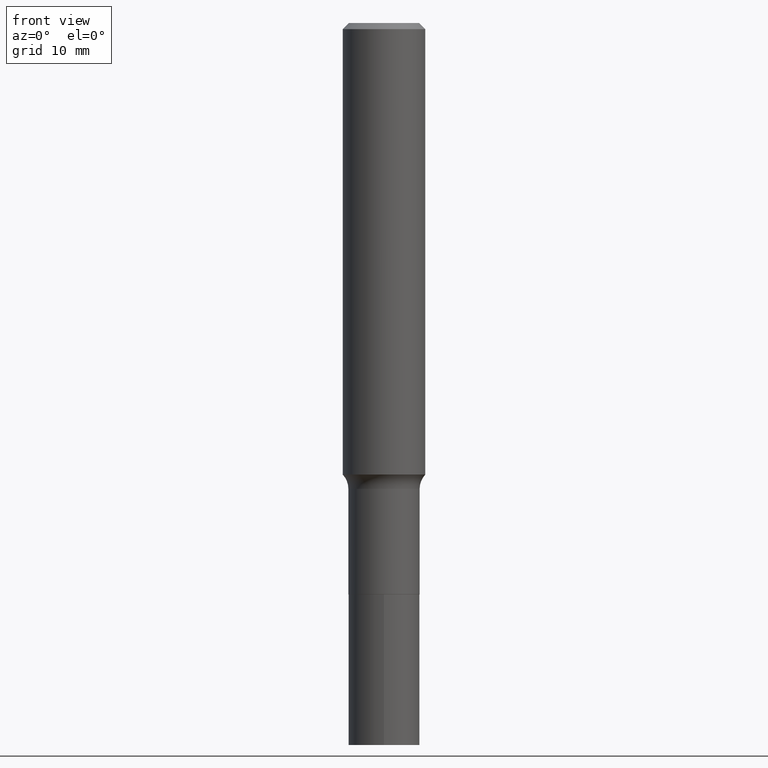
[diagram: clean part render]
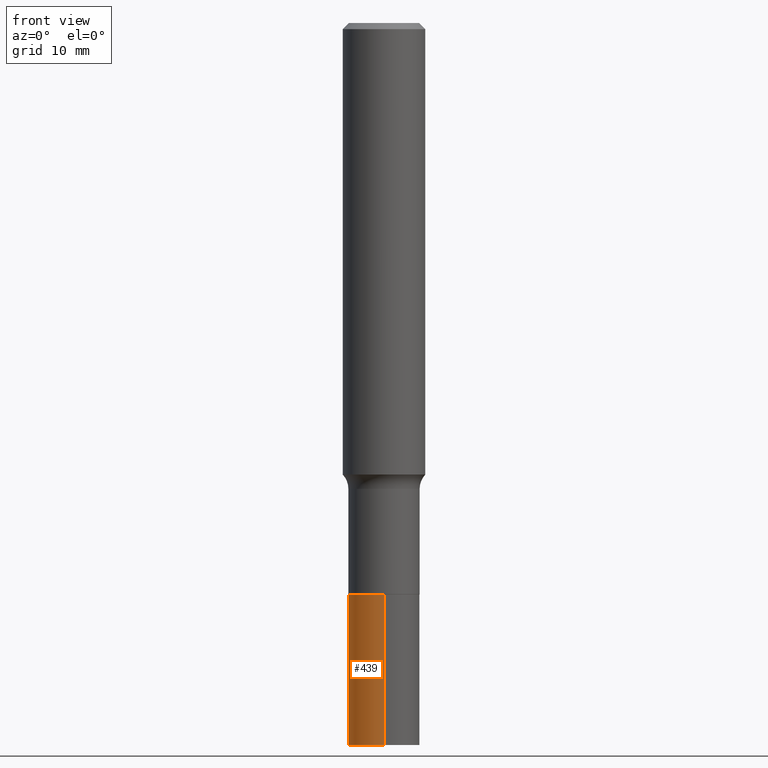
[diagram: same view with one face highlighted and labeled with its STEP entity id]
A machine part, front view. The second image highlights one B-rep face of the part: STEP entity #439.
In plain terms, the highlighted cylindrical surface (edge-blend (fillet) strip) has radius 3.4544 mm, axis along (-0, 0, 1).
Its self-contained STEP definition (entity closure, byte-faithful):
#43 = VERTEX_POINT ( 'NONE', #415 ) ;
#46 = EDGE_CURVE ( 'NONE', #156, #49, #47, .T. ) ;
#47 = LINE ( 'NONE', #129, #307 ) ;
#49 = VERTEX_POINT ( 'NONE', #229 ) ;
#50 = DIRECTION ( 'NONE',  ( -2.445082877625027389E-29, 3.492034010506911501E-15, 1.000000000000000000 ) ) ;
#57 = DIRECTION ( 'NONE',  ( -2.445082877625027389E-29, 3.492034010506911501E-15, 1.000000000000000000 ) ) ;
#77 = ORIENTED_EDGE ( 'NONE', *, *, #216, .F. ) ;
#79 = ORIENTED_EDGE ( 'NONE', *, *, #159, .T. ) ;
#129 = CARTESIAN_POINT ( 'NONE',  ( -9.496829241652788115E-16, -0.1360000000000076148, -2.180899999999999395 ) ) ;
#156 = VERTEX_POINT ( 'NONE', #281 ) ;
#157 = EDGE_LOOP ( 'NONE', ( #77, #79, #429, #289 ) ) ;
#159 = EDGE_CURVE ( 'NONE', #43, #156, #364, .T. ) ;
#167 = EDGE_CURVE ( 'NONE', #292, #49, #293, .T. ) ;
#179 = CARTESIAN_POINT ( 'NONE',  ( 5.333322919409164465E-29, -7.614571651883016400E-15, -2.180899999999999839 ) ) ;
#183 = VECTOR ( 'NONE', #50, 39.37007874015748143 ) ;
#209 = DIRECTION ( 'NONE',  ( -6.982962677686265922E-15, -1.000000000000000000, 4.017423520094504617E-15 ) ) ;
#215 = FACE_OUTER_BOUND ( 'NONE', #157, .T. ) ;
#216 = EDGE_CURVE ( 'NONE', #43, #292, #404, .T. ) ;
#229 = CARTESIAN_POINT ( 'NONE',  ( -9.496829241652788115E-16, -0.1360000000000076148, -2.180899999999999395 ) ) ;
#243 = DIRECTION ( 'NONE',  ( -6.982962677686265922E-15, -1.000000000000000000, 4.017423520094504617E-15 ) ) ;
#245 = CYLINDRICAL_SURFACE ( 'NONE', #435, 0.1360000000000000098 ) ;
#248 = DIRECTION ( 'NONE',  ( -6.982962677686265922E-15, -1.000000000000000000, 4.017423520094504617E-15 ) ) ;
#271 = CARTESIAN_POINT ( 'NONE',  ( 9.663381206338035726E-16, 0.1359999999999923770, -2.180900000000000283 ) ) ;
#281 = CARTESIAN_POINT ( 'NONE',  ( -9.496829241652648093E-16, -0.1360000000000096132, -2.755900000000000016 ) ) ;
#289 = ORIENTED_EDGE ( 'NONE', *, *, #167, .F. ) ;
#292 = VERTEX_POINT ( 'NONE', #271 ) ;
#293 = CIRCLE ( 'NONE', #427, 0.1360000000000000098 ) ;
#307 = VECTOR ( 'NONE', #57, 39.37007874015748143 ) ;
#317 = AXIS2_PLACEMENT_3D ( 'NONE', #383, #320, #243 ) ;
#320 = DIRECTION ( 'NONE',  ( -2.445082877625027389E-29, 3.492034010506911501E-15, 1.000000000000000000 ) ) ;
#364 = CIRCLE ( 'NONE', #317, 0.1360000000000000098 ) ;
#369 = CARTESIAN_POINT ( 'NONE',  ( 9.663381206337895703E-16, 0.1359999999999923770, -2.180900000000000283 ) ) ;
#378 = DIRECTION ( 'NONE',  ( -2.445082877625027389E-29, 3.492034010506911501E-15, 1.000000000000000000 ) ) ;
#382 = DIRECTION ( 'NONE',  ( -2.445082877625027389E-29, 3.492034010506911501E-15, 1.000000000000000000 ) ) ;
#383 = CARTESIAN_POINT ( 'NONE',  ( 6.739245574043556692E-29, -9.622491207924491647E-15, -2.755900000000000460 ) ) ;
#404 = LINE ( 'NONE', #369, #183 ) ;
#415 = CARTESIAN_POINT ( 'NONE',  ( 9.663381206337964728E-16, 0.1359999999999903786, -2.755900000000000905 ) ) ;
#427 = AXIS2_PLACEMENT_3D ( 'NONE', #460, #378, #209 ) ;
#429 = ORIENTED_EDGE ( 'NONE', *, *, #46, .T. ) ;
#435 = AXIS2_PLACEMENT_3D ( 'NONE', #179, #382, #248 ) ;
#439 = ADVANCED_FACE ( 'NONE', ( #215 ), #245, .T. ) ;
#460 = CARTESIAN_POINT ( 'NONE',  ( 5.333322919409164465E-29, -7.614571651883016400E-15, -2.180899999999999839 ) ) ;